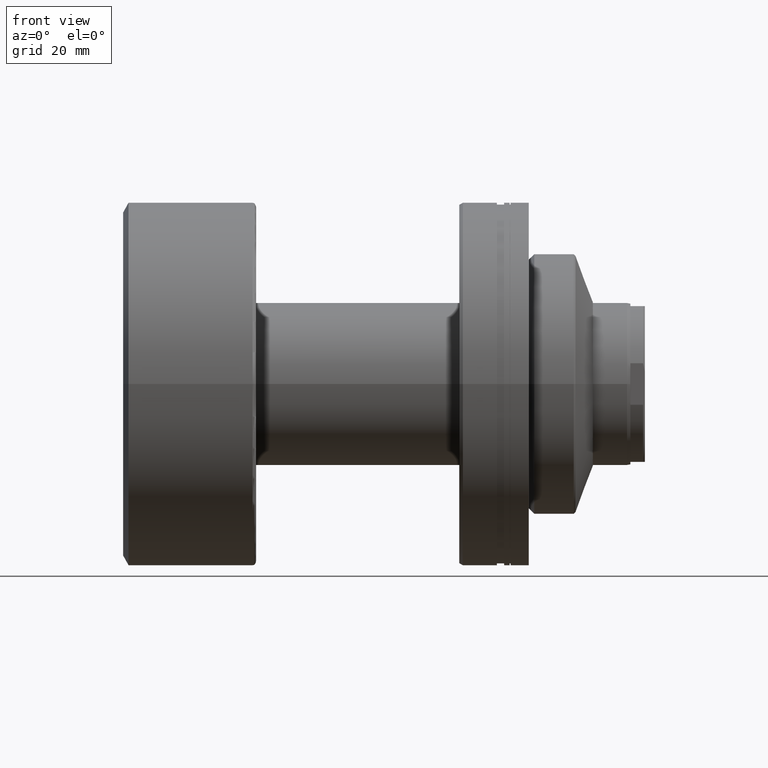
[diagram: clean part render]
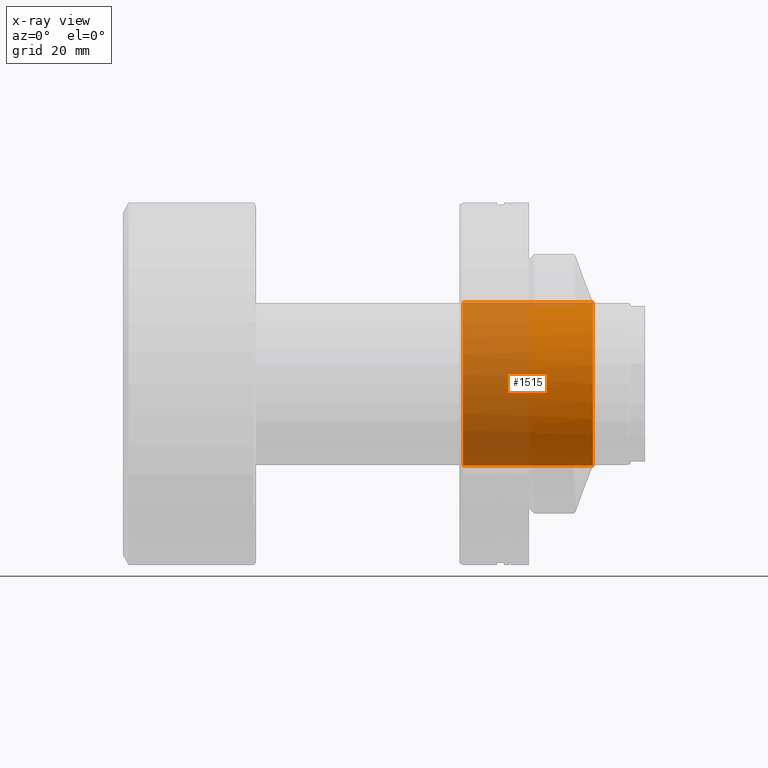
[diagram: x-ray — body ghosted, one internal face saturated and labeled with its STEP entity id]
A machine part, front view, then the same camera in x-ray: the body is ghosted and one INTERNAL B-rep face — a face not visible from any outside direction — is saturated and labeled: STEP entity #1515.
In plain terms, the highlighted cylindrical surface (partial cylindrical patch) has radius 22.5 mm, axis along (1, 0, 0).
Its self-contained STEP definition (entity closure, byte-faithful):
#51 = EDGE_CURVE ( 'NONE', #959, #1633, #834, .T. ) ;
#109 = ORIENTED_EDGE ( 'NONE', *, *, #716, .T. ) ;
#110 = CARTESIAN_POINT ( 'NONE',  ( -108.8396103067892966, 0.000000000000000000, -22.50000000000000355 ) ) ;
#113 = VERTEX_POINT ( 'NONE', #2071 ) ;
#174 = DIRECTION ( 'NONE',  ( 2.312964634635742464E-16, -1.000000000000000000, 0.000000000000000000 ) ) ;
#183 = FACE_OUTER_BOUND ( 'NONE', #301, .T. ) ;
#277 = CIRCLE ( 'NONE', #988, 22.50000000000000355 ) ;
#280 = DIRECTION ( 'NONE',  ( 1.000000000000000000, -0.000000000000000000, -0.000000000000000000 ) ) ;
#301 = EDGE_LOOP ( 'NONE', ( #109, #1819, #1573, #1720, #1654 ) ) ;
#345 = CIRCLE ( 'NONE', #1298, 22.50000000000000355 ) ;
#425 = DIRECTION ( 'NONE',  ( -1.000000000000000000, 0.000000000000000000, 0.000000000000000000 ) ) ;
#556 = CYLINDRICAL_SURFACE ( 'NONE', #1521, 22.50000000000000355 ) ;
#566 = VECTOR ( 'NONE', #280, 1000.000000000000000 ) ;
#589 = DIRECTION ( 'NONE',  ( -1.000000000000000000, -2.485414848852932351E-16, 0.000000000000000000 ) ) ;
#679 = CARTESIAN_POINT ( 'NONE',  ( -44.19999999999998863, 0.000000000000000000, -22.50000000000000355 ) ) ;
#706 = CARTESIAN_POINT ( 'NONE',  ( -8.302816901408885286, 5.462247379445728618E-15, 0.000000000000000000 ) ) ;
#716 = EDGE_CURVE ( 'NONE', #959, #1347, #345, .T. ) ;
#732 = VERTEX_POINT ( 'NONE', #1687 ) ;
#803 = CIRCLE ( 'NONE', #1525, 22.50000000000000355 ) ;
#834 = LINE ( 'NONE', #110, #566 ) ;
#850 = LINE ( 'NONE', #1200, #1781 ) ;
#931 = CARTESIAN_POINT ( 'NONE',  ( -44.19999999999998863, 0.000000000000000000, 0.000000000000000000 ) ) ;
#959 = VERTEX_POINT ( 'NONE', #679 ) ;
#980 = CARTESIAN_POINT ( 'NONE',  ( -44.19999999999998863, 2.755455298081545172E-15, 22.50000000000000355 ) ) ;
#988 = AXIS2_PLACEMENT_3D ( 'NONE', #706, #1246, #174 ) ;
#1011 = DIRECTION ( 'NONE',  ( 1.000000000000000000, -0.000000000000000000, -0.000000000000000000 ) ) ;
#1200 = CARTESIAN_POINT ( 'NONE',  ( -108.8396103067892966, 2.755455298081545172E-15, 22.50000000000000355 ) ) ;
#1246 = DIRECTION ( 'NONE',  ( -1.000000000000000000, -2.485414848852932351E-16, 0.000000000000000000 ) ) ;
#1258 = DIRECTION ( 'NONE',  ( 0.000000000000000000, 0.000000000000000000, -1.000000000000000000 ) ) ;
#1298 = AXIS2_PLACEMENT_3D ( 'NONE', #931, #425, #1982 ) ;
#1347 = VERTEX_POINT ( 'NONE', #980 ) ;
#1505 = EDGE_CURVE ( 'NONE', #1347, #113, #850, .T. ) ;
#1507 = DIRECTION ( 'NONE',  ( 2.312964634635742464E-16, -1.000000000000000000, 0.000000000000000000 ) ) ;
#1515 = ADVANCED_FACE ( 'NONE', ( #183 ), #556, .F. ) ;
#1521 = AXIS2_PLACEMENT_3D ( 'NONE', #1908, #1011, #1258 ) ;
#1525 = AXIS2_PLACEMENT_3D ( 'NONE', #1873, #589, #1507 ) ;
#1573 = ORIENTED_EDGE ( 'NONE', *, *, #1897, .F. ) ;
#1633 = VERTEX_POINT ( 'NONE', #2218 ) ;
#1654 = ORIENTED_EDGE ( 'NONE', *, *, #51, .F. ) ;
#1687 = CARTESIAN_POINT ( 'NONE',  ( -8.302816901408881733, -22.49999999999999645, 0.000000000000000000 ) ) ;
#1720 = ORIENTED_EDGE ( 'NONE', *, *, #1800, .F. ) ;
#1781 = VECTOR ( 'NONE', #1806, 1000.000000000000000 ) ;
#1800 = EDGE_CURVE ( 'NONE', #1633, #732, #277, .T. ) ;
#1806 = DIRECTION ( 'NONE',  ( 1.000000000000000000, -0.000000000000000000, -0.000000000000000000 ) ) ;
#1819 = ORIENTED_EDGE ( 'NONE', *, *, #1505, .T. ) ;
#1873 = CARTESIAN_POINT ( 'NONE',  ( -8.302816901408885286, 5.462247379445728618E-15, 0.000000000000000000 ) ) ;
#1897 = EDGE_CURVE ( 'NONE', #732, #113, #803, .T. ) ;
#1908 = CARTESIAN_POINT ( 'NONE',  ( -108.8396103067892966, 0.000000000000000000, 0.000000000000000000 ) ) ;
#1982 = DIRECTION ( 'NONE',  ( 0.000000000000000000, 0.000000000000000000, -1.000000000000000000 ) ) ;
#2071 = CARTESIAN_POINT ( 'NONE',  ( -8.302816901408885286, 2.755455298081545172E-15, 22.50000000000000355 ) ) ;
#2218 = CARTESIAN_POINT ( 'NONE',  ( -8.302816901408885286, 0.000000000000000000, -22.50000000000000355 ) ) ;